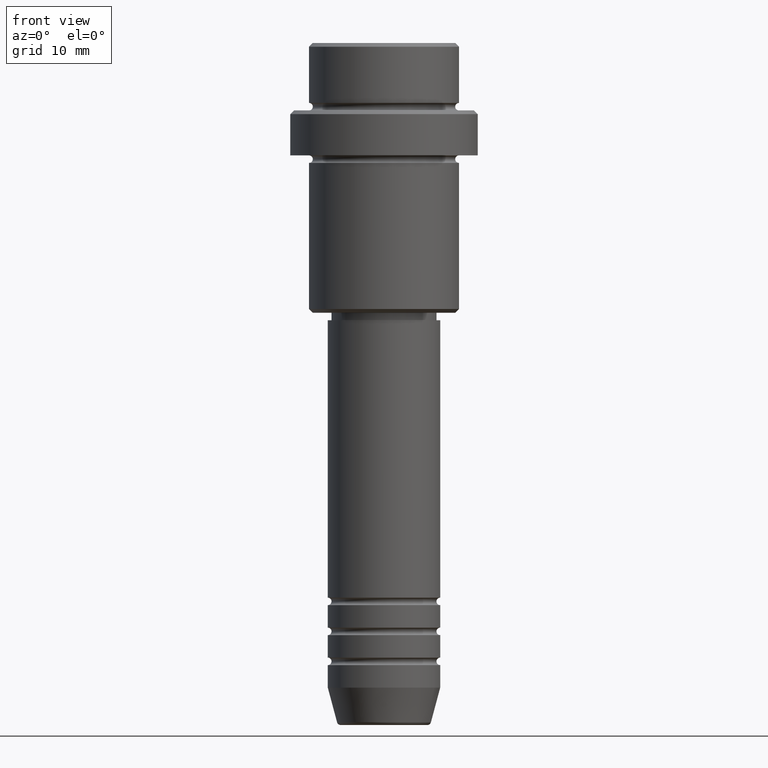
[diagram: clean part render]
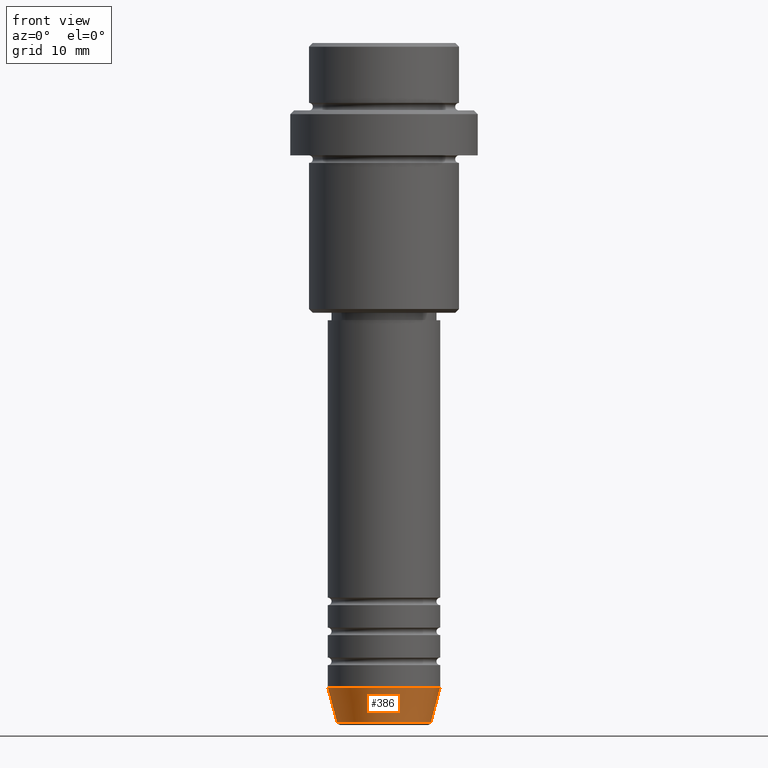
[diagram: same view with one face highlighted and labeled with its STEP entity id]
A machine part, front view. The second image highlights one B-rep face of the part: STEP entity #386.
In plain terms, the highlighted conical surface has half-angle 15 deg.
Its self-contained STEP definition (entity closure, byte-faithful):
#75 = VERTEX_POINT ( 'NONE', #694 ) ;
#94 = ORIENTED_EDGE ( 'NONE', *, *, #537, .F. ) ;
#139 = VERTEX_POINT ( 'NONE', #1297 ) ;
#178 = ORIENTED_EDGE ( 'NONE', *, *, #564, .F. ) ;
#239 = CARTESIAN_POINT ( 'NONE',  ( 0.000000000000000000, 0.000000000000000000, -86.00000000000000000 ) ) ;
#269 = DIRECTION ( 'NONE',  ( 0.2588190451025213501, 0.000000000000000000, 0.9659258262890680902 ) ) ;
#274 = DIRECTION ( 'NONE',  ( 1.000000000000000000, 0.000000000000000000, 0.000000000000000000 ) ) ;
#305 = CIRCLE ( 'NONE', #856, 7.500000000000000000 ) ;
#348 = CARTESIAN_POINT ( 'NONE',  ( 6.259553456999438659, 0.000000000000000000, -90.62940952255125637 ) ) ;
#371 = FACE_OUTER_BOUND ( 'NONE', #1298, .T. ) ;
#386 = ADVANCED_FACE ( 'NONE', ( #371 ), #610, .T. ) ;
#390 = CARTESIAN_POINT ( 'NONE',  ( -7.500000000000000000, 9.184850993605147944E-16, -86.00000000000000000 ) ) ;
#462 = DIRECTION ( 'NONE',  ( 1.000000000000000000, 0.000000000000000000, 0.000000000000000000 ) ) ;
#478 = ORIENTED_EDGE ( 'NONE', *, *, #1102, .T. ) ;
#486 = VERTEX_POINT ( 'NONE', #1144 ) ;
#524 = EDGE_CURVE ( 'NONE', #1303, #486, #736, .T. ) ;
#537 = EDGE_CURVE ( 'NONE', #75, #486, #305, .T. ) ;
#564 = EDGE_CURVE ( 'NONE', #139, #75, #825, .T. ) ;
#575 = ORIENTED_EDGE ( 'NONE', *, *, #524, .T. ) ;
#610 = CONICAL_SURFACE ( 'NONE', #1361, 7.500000000000000000, 0.2617993877991500740 ) ;
#611 = CARTESIAN_POINT ( 'NONE',  ( 0.000000000000000000, 0.000000000000000000, -86.00000000000000000 ) ) ;
#694 = CARTESIAN_POINT ( 'NONE',  ( -7.500000000000000000, 9.184850993605147944E-16, -86.00000000000000000 ) ) ;
#736 = LINE ( 'NONE', #851, #1174 ) ;
#772 = CIRCLE ( 'NONE', #1337, 6.259553456999438659 ) ;
#825 = LINE ( 'NONE', #390, #905 ) ;
#851 = CARTESIAN_POINT ( 'NONE',  ( 7.500000000000000000, 0.000000000000000000, -86.00000000000000000 ) ) ;
#856 = AXIS2_PLACEMENT_3D ( 'NONE', #611, #1284, #274 ) ;
#863 = DIRECTION ( 'NONE',  ( 1.000000000000000000, 0.000000000000000000, 0.000000000000000000 ) ) ;
#905 = VECTOR ( 'NONE', #1401, 1000.000000000000000 ) ;
#954 = CARTESIAN_POINT ( 'NONE',  ( 0.000000000000000000, 0.000000000000000000, -90.62940952255125637 ) ) ;
#1101 = DIRECTION ( 'NONE',  ( -0.000000000000000000, -0.000000000000000000, 1.000000000000000000 ) ) ;
#1102 = EDGE_CURVE ( 'NONE', #139, #1303, #772, .T. ) ;
#1144 = CARTESIAN_POINT ( 'NONE',  ( 7.500000000000000000, 0.000000000000000000, -86.00000000000000000 ) ) ;
#1164 = DIRECTION ( 'NONE',  ( -0.000000000000000000, -0.000000000000000000, 1.000000000000000000 ) ) ;
#1174 = VECTOR ( 'NONE', #269, 1000.000000000000000 ) ;
#1284 = DIRECTION ( 'NONE',  ( -0.000000000000000000, -0.000000000000000000, 1.000000000000000000 ) ) ;
#1297 = CARTESIAN_POINT ( 'NONE',  ( -6.259553456999439547, 8.425296549405630472E-16, -90.62940952255125637 ) ) ;
#1298 = EDGE_LOOP ( 'NONE', ( #178, #478, #575, #94 ) ) ;
#1303 = VERTEX_POINT ( 'NONE', #348 ) ;
#1337 = AXIS2_PLACEMENT_3D ( 'NONE', #954, #1164, #863 ) ;
#1361 = AXIS2_PLACEMENT_3D ( 'NONE', #239, #1101, #462 ) ;
#1401 = DIRECTION ( 'NONE',  ( -0.2588190451025213501, 3.169619151431772337E-17, 0.9659258262890680902 ) ) ;